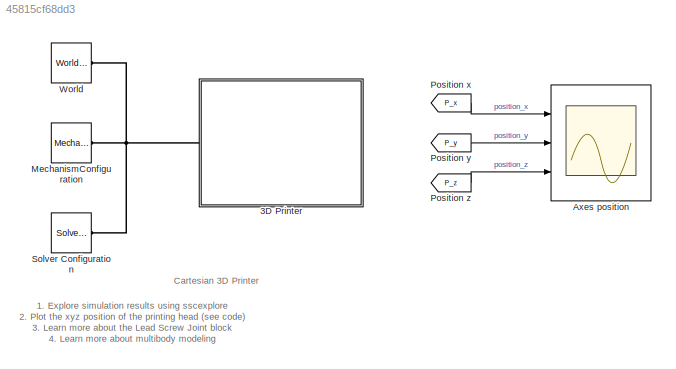
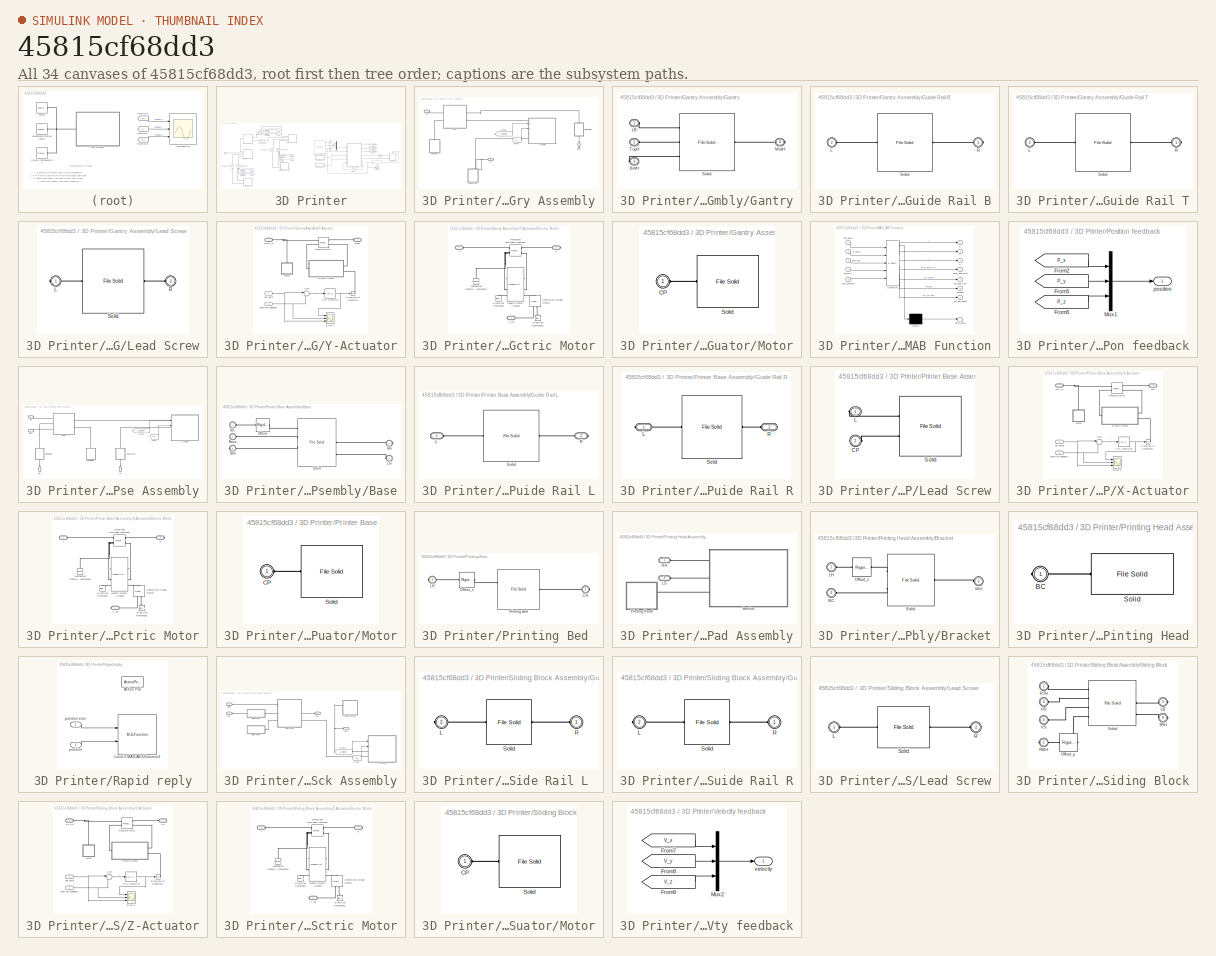
[diagram: thumbnail index - all 34 canvases of the model, root first then tree order]
MODEL slx_45815cf68dd3
KIND model
CONFIG AbsTol = auto
CONFIG EnableMultiTasking = off
CONFIG FixedStep = auto
CONFIG MaxStep = auto
CONFIG MinStep = auto
CONFIG RelTol = 1e-3
CONFIG SampleTimeConstraint = Unconstrained
CONFIG SolverName = ode45
CONFIG StartTime = 0.0
CONFIG StopTime = 1.89
WORKSPACE source: external: MATLAB File  (data not in archive)
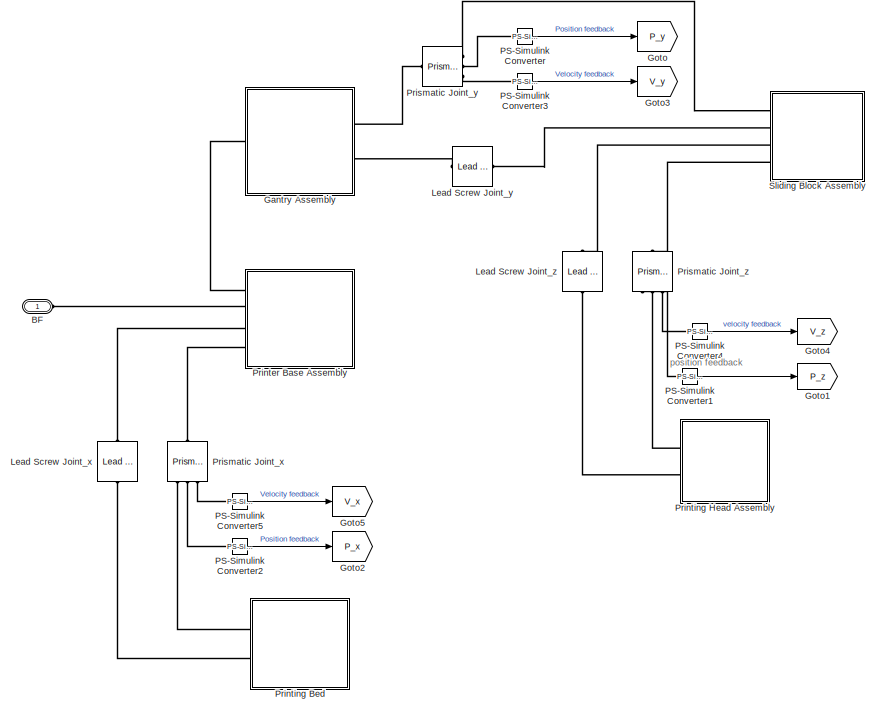
[diagram: 3D Printer - part 1/2, left side, full height]
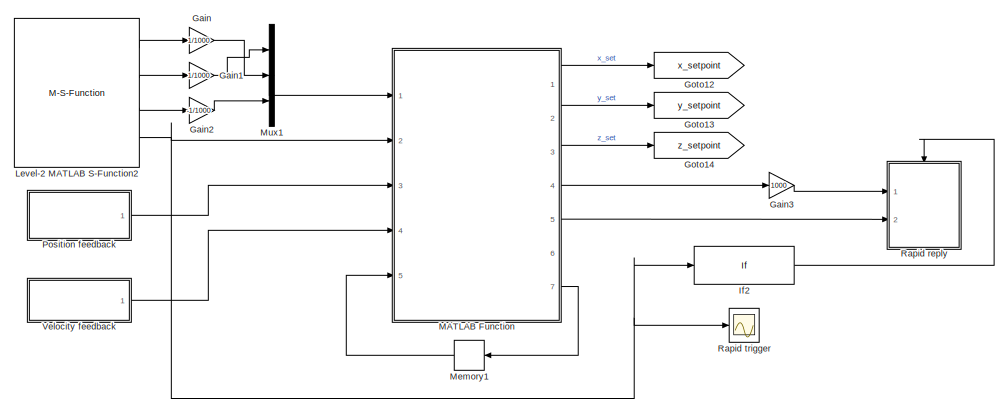
[diagram: 3D Printer - part 2/2, middle right region]
BLOCK [SubSystem] 3D Printer
  Ports = [0, 0, 0, 0, 0, 1]
  RequestExecContextInheritance = off
BLOCK [PMIOPort] 3D Printer/BF 
  Side = Left
BLOCK [Gain] 3D Printer/Gain
  Gain = 1/1000
BLOCK [Gain] 3D Printer/Gain1
  Gain = 1/1000
BLOCK [Gain] 3D Printer/Gain2
  Gain = -1/1000
BLOCK [Gain] 3D Printer/Gain3
  Gain = 1000
BLOCK [SubSystem] 3D Printer/Gantry Assembly
  Ports = [0, 0, 0, 0, 0, 1, 2]
  RequestExecContextInheritance = off
BLOCK [PMIOPort] 3D Printer/Gantry Assembly/BotH
  NameLocation = left
  Side = Right
BLOCK [From] 3D Printer/Gantry Assembly/From
  GotoTag = P_y
  TagVisibility = global
BLOCK [From] 3D Printer/Gantry Assembly/From1
  GotoTag = y_setpoint
  TagVisibility = global
BLOCK [SubSystem] 3D Printer/Gantry Assembly/Gantry
  Ports = [0, 0, 0, 0, 0, 2, 2]
  RequestExecContextInheritance = off
BLOCK [PMIOPort] 3D Printer/Gantry Assembly/Gantry/BotH
  Port = 3
  Side = Right
BLOCK [PMIOPort] 3D Printer/Gantry Assembly/Gantry/LB
  Side = Left
BLOCK [PMIOPort] 3D Printer/Gantry Assembly/Gantry/MidH
  Port = 4
  Side = Right
BLOCK [Reference] 3D Printer/Gantry Assembly/Gantry/Solid  REF=sm_lib/Body Elements/File Solid
  Ports = [0, 0, 0, 0, 0, 3, 3]
  SourceBlock = sm_lib/Body Elements/File Solid
  SourceProductBaseCode = MS
  SourceType = File Solid
BLOCK [PMIOPort] 3D Printer/Gantry Assembly/Gantry/TopH
  Port = 2
  Side = Left
BLOCK [SubSystem] 3D Printer/Gantry Assembly/Guide Rail B
  NameLocation = right
  Ports = [0, 0, 0, 0, 0, 1, 1]
  RequestExecContextInheritance = off
BLOCK [PMIOPort] 3D Printer/Gantry Assembly/Guide Rail B/L
  Port = 2
  Side = Left
BLOCK [PMIOPort] 3D Printer/Gantry Assembly/Guide Rail B/R
  Side = Right
BLOCK [Reference] 3D Printer/Gantry Assembly/Guide Rail B/Solid  REF=sm_lib/Body Elements/File Solid
  Ports = [0, 0, 0, 0, 0, 1, 1]
  SourceBlock = sm_lib/Body Elements/File Solid
  SourceProductBaseCode = MS
  SourceType = File Solid
BLOCK [SubSystem] 3D Printer/Gantry Assembly/Guide Rail T
  NameLocation = right
  Ports = [0, 0, 0, 0, 0, 1, 1]
  RequestExecContextInheritance = off
BLOCK [PMIOPort] 3D Printer/Gantry Assembly/Guide Rail T/L
  Port = 2
  Side = Left
BLOCK [PMIOPort] 3D Printer/Gantry Assembly/Guide Rail T/R
  Side = Right
BLOCK [Reference] 3D Printer/Gantry Assembly/Guide Rail T/Solid  REF=sm_lib/Body Elements/File Solid
  Ports = [0, 0, 0, 0, 0, 1, 1]
  SourceBlock = sm_lib/Body Elements/File Solid
  SourceProductBaseCode = MS
  SourceType = File Solid
BLOCK [PMIOPort] 3D Printer/Gantry Assembly/LB
  Port = 2
  Side = Left
BLOCK [PMIOPort] 3D Printer/Gantry Assembly/LS 
  Port = 3
  Side = Right
BLOCK [SubSystem] 3D Printer/Gantry Assembly/Lead Screw
  NameLocation = right
  Ports = [0, 0, 0, 0, 0, 1, 1]
  RequestExecContextInheritance = off
BLOCK [PMIOPort] 3D Printer/Gantry Assembly/Lead Screw/L
  Side = Right
BLOCK [PMIOPort] 3D Printer/Gantry Assembly/Lead Screw/R
  Port = 2
  Side = Left
BLOCK [Reference] 3D Printer/Gantry Assembly/Lead Screw/Solid  REF=sm_lib/Body Elements/File Solid
  Ports = [0, 0, 0, 0, 0, 1, 1]
  SourceBlock = sm_lib/Body Elements/File Solid
  SourceProductBaseCode = MS
  SourceType = File Solid
BLOCK [SubSystem] 3D Printer/Gantry Assembly/Y-Actuator
  PortSchema = {"entries":[{"content":{"sides":[{"content":{"connectorIds":["LConn1","LConn2","In1","In2"]},"type":"ConnectorPlacement.EquallySpacedRectSide","uuid":"22a72145-70fe-4c07-a355-17651bab5534"},{"content":{"connectorIds":[],"side":"RIGHT"},"type":"ConnectorPlacement.EquallySpacedRectSide","uuid":"e15c401c-ae36-45b1-bf72-5294abc9e452"},{"content":{"connectorIds":[],"side":"TOP"},"type":"ConnectorPlacem...<+258ch>  <repeated x3 — deduplicated; at blocks: Y-Actuator, X-Actuator, Z-Actuator>
  Ports = [2, 0, 0, 0, 0, 2]
  RequestExecContextInheritance = off
BLOCK [SubSystem] 3D Printer/Gantry Assembly/Y-Actuator/Electric Motor
  Ports = [0, 0, 0, 0, 0, 1, 2]
  RequestExecContextInheritance = off
BLOCK [Reference] 3D Printer/Gantry Assembly/Y-Actuator/Electric Motor/Controlled Voltage Source  REF=fl_lib/Electrical/Electrical Sources/Controlled Voltage
Source
  NameLocation = right
  Ports = [0, 0, 0, 0, 0, 1, 2]
  SourceBlock = fl_lib/Electrical/Electrical Sources/Controlled Voltage\nSource
  SourceProductBaseCode = PW,SS,VE
  SourceType = Controlled Voltage\nSource
BLOCK [Reference] 3D Printer/Gantry Assembly/Y-Actuator/Electric Motor/Electrical Reference  REF=fl_lib/Electrical/Electrical Elements/Electrical Reference
  NameLocation = right
  Ports = [0, 0, 0, 0, 0, 1]
  SourceBlock = fl_lib/Electrical/Electrical Elements/Electrical Reference
  SourceProductBaseCode = PW,SS,VE
  SourceType = Electrical Reference
BLOCK [Reference] 3D Printer/Gantry Assembly/Y-Actuator/Electric Motor/Electrical Reference1  REF=fl_lib/Electrical/Electrical Elements/Electrical Reference
  NameLocation = right
  Ports = [0, 0, 0, 0, 0, 1]
  SourceBlock = fl_lib/Electrical/Electrical Elements/Electrical Reference
  SourceProductBaseCode = PW,SS,VE
  SourceType = Electrical Reference
BLOCK [Reference] 3D Printer/Gantry Assembly/Y-Actuator/Electric Motor/Generic Rotary Actuator  REF=ee_lib/Electromechanical/Mechatronic
Actuators/Generic Rotary
Actuator
  NameLocation = top
  Ports = [0, 0, 0, 0, 0, 2, 2]
  SourceBlock = ee_lib/Electromechanical/Mechatronic\nActuators/Generic Rotary\nActuator
  SourceProductBaseCode = PS
  SourceType = Generic Rotary\nActuator
BLOCK [Reference] 3D Printer/Gantry Assembly/Y-Actuator/Electric Motor/Mechanical Rotational Reference  REF=fl_lib/Mechanical/Rotational Elements/Mechanical
Rotational Reference
  NameLocation = right
  Ports = [0, 0, 0, 0, 0, 1]
  SourceBlock = fl_lib/Mechanical/Rotational Elements/Mechanical\nRotational Reference
  SourceProductBaseCode = PW,SS,VE
  SourceType = Mechanical\nRotational Reference
BLOCK [Reference] 3D Printer/Gantry Assembly/Y-Actuator/Electric Motor/Rotational Multibody Interface  REF=fl_lib/Mechanical/Multibody Interfaces/Rotational Multibody
Interface
  Ports = [0, 0, 0, 0, 0, 2, 2]
  SourceBlock = fl_lib/Mechanical/Multibody Interfaces/Rotational Multibody\nInterface
  SourceProductBaseCode = PW,SS,VE
  SourceType = Rotational Multibody\nInterface
BLOCK [PMIOPort] 3D Printer/Gantry Assembly/Y-Actuator/Electric Motor/V_ref
  Port = 3
  Side = Right
BLOCK [PMIOPort] 3D Printer/Gantry Assembly/Y-Actuator/Electric Motor/t
  Side = Left
BLOCK [PMIOPort] 3D Printer/Gantry Assembly/Y-Actuator/Electric Motor/w
  Port = 2
  Side = Right
BLOCK [Scope] 3D Printer/Gantry Assembly/Y-Actuator/Error Y
  Floating = off
  NumInputPorts = 3
  Ports = [3]
  ScopeSpecificationString = Simulink.scopes.TimeScopeBlockCfg('CurrentConfiguration', extmgr.ConfigurationSet(extmgr.Configuration('Core','General UI',true),extmgr.Configuration('Core','Source UI',true),extmgr.Configuration('Sources','WiredSimulink',true,'DataLoggingVariableName','ScopeData4'),extmgr.Configuration('Visuals','Time Domain',true,'SerializedDisplays',{struct('MinYLimReal','-0.06798','MaxYLimReal','0.4742','YLabe...<+1453ch>
BLOCK [PMIOPort] 3D Printer/Gantry Assembly/Y-Actuator/MidH
  NameLocation = top
  Port = 2
  Side = Left
BLOCK [PMIOPort] 3D Printer/Gantry Assembly/Y-Actuator/MidH_IN
  Side = Left
BLOCK [SubSystem] 3D Printer/Gantry Assembly/Y-Actuator/Motor
  Ports = [0, 0, 0, 0, 0, 1]
  RequestExecContextInheritance = off
BLOCK [PMIOPort] 3D Printer/Gantry Assembly/Y-Actuator/Motor/CP
  Side = Left
BLOCK [Reference] 3D Printer/Gantry Assembly/Y-Actuator/Motor/Solid  REF=sm_lib/Body Elements/File Solid
  Ports = [0, 0, 0, 0, 0, 1]
  SourceBlock = sm_lib/Body Elements/File Solid
  SourceProductBaseCode = MS
  SourceType = File Solid
BLOCK [Reference] 3D Printer/Gantry Assembly/Y-Actuator/PID Controller  REF=slpidlib/PID Controller
  Ports = [1, 1]
  SourceBlock = slpidlib/PID Controller
  SourceProductBaseCode = SL
  SourceType = PID 1dof
BLOCK [Reference] 3D Printer/Gantry Assembly/Y-Actuator/Revolute Joint1  REF=sm_lib/Joints/Revolute Joint
  Ports = [0, 0, 0, 0, 0, 2, 2]
  SourceBlock = sm_lib/Joints/Revolute Joint
  SourceProductBaseCode = MS
  SourceType = Revolute Joint
BLOCK [Reference] 3D Printer/Gantry Assembly/Y-Actuator/Simulink-PS Converter1  REF=nesl_utility/Simulink-PS
Converter
  Ports = [1, 0, 0, 0, 0, 0, 1]
  SourceBlock = nesl_utility/Simulink-PS\nConverter
  SourceProductName = Utilities
  SourceType = Simulink-PS\nConverter
BLOCK [Sum] 3D Printer/Gantry Assembly/Y-Actuator/Sum
  Inputs = |-+
  Ports = [2, 1]
BLOCK [Inport] 3D Printer/Gantry Assembly/Y-Actuator/position feedback
  Port = 2
BLOCK [Inport] 3D Printer/Gantry Assembly/Y-Actuator/set point
BLOCK [Goto] 3D Printer/Goto
  GotoTag = P_y
  TagVisibility = global
BLOCK [Goto] 3D Printer/Goto1
  GotoTag = P_z
  TagVisibility = global
BLOCK [Goto] 3D Printer/Goto12
  GotoTag = x_setpoint
  TagVisibility = global
BLOCK [Goto] 3D Printer/Goto13
  GotoTag = y_setpoint
  TagVisibility = global
BLOCK [Goto] 3D Printer/Goto14
  GotoTag = z_setpoint
  TagVisibility = global
BLOCK [Goto] 3D Printer/Goto2
  GotoTag = P_x
  TagVisibility = global
BLOCK [Goto] 3D Printer/Goto3
  GotoTag = V_y
  TagVisibility = global
BLOCK [Goto] 3D Printer/Goto4
  GotoTag = V_z
  TagVisibility = global
BLOCK [Goto] 3D Printer/Goto5
  GotoTag = V_x
  TagVisibility = global
BLOCK [If] 3D Printer/If2
  IfExpression = u1
  Ports = [1, 1]
  ShowElse = off
BLOCK [Reference] 3D Printer/Lead Screw Joint_x  REF=sm_lib/Joints/Lead Screw
Joint
  NameLocation = left
  Ports = [0, 0, 0, 0, 0, 1, 1]
  SourceBlock = sm_lib/Joints/Lead Screw\nJoint
  SourceProductBaseCode = MS
  SourceType = Lead Screw\nJoint
BLOCK [Reference] 3D Printer/Lead Screw Joint_y  REF=sm_lib/Joints/Lead Screw
Joint
  Ports = [0, 0, 0, 0, 0, 1, 1]
  SourceBlock = sm_lib/Joints/Lead Screw\nJoint
  SourceProductBaseCode = MS
  SourceType = Lead Screw\nJoint
BLOCK [Reference] 3D Printer/Lead Screw Joint_z  REF=sm_lib/Joints/Lead Screw
Joint
  NameLocation = left
  Ports = [0, 0, 0, 0, 0, 1, 1]
  SourceBlock = sm_lib/Joints/Lead Screw\nJoint
  SourceProductBaseCode = MS
  SourceType = Lead Screw\nJoint
BLOCK [M-S-Function] 3D Printer/Level-2 MATLAB S-Function2
  FunctionName = mqtt_sub_position_new
  Ports = [0, 4]
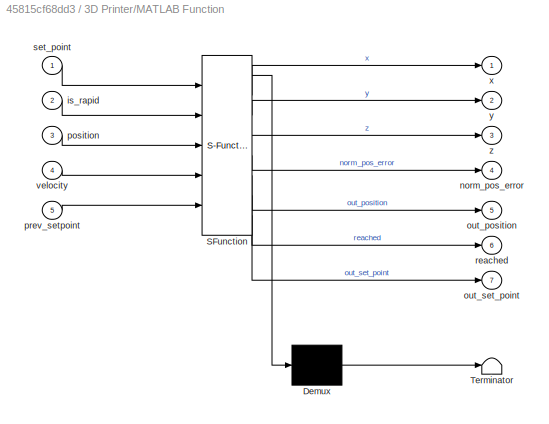
BLOCK [SubSystem] 3D Printer/MATLAB Function
  ErrorFcn = Stateflow.Translate.translate
  PermitHierarchicalResolution = ExplicitOnly
  Ports = [5, 7]
  RequestExecContextInheritance = off
  SFBlockType = MATLAB Function
  TreatAsAtomicUnit = on
BLOCK [Demux] 3D Printer/MATLAB Function/ Demux 
  Outputs = 1
  Ports = [1, 1]
BLOCK [S-Function] 3D Printer/MATLAB Function/ SFunction 
  EnableBusSupport = on
  FunctionName = sf_sfun
  PortCounts = [5 8]
  Ports = [5, 8]
  SFcnIsStateOwnerBlock = off
  SFunctionDeploymentMode = off
  Tag = Stateflow S-Function 3
BLOCK [Terminator] 3D Printer/MATLAB Function/ Terminator 
BLOCK [Inport] 3D Printer/MATLAB Function/is_rapid
  Port = 2
BLOCK [Outport] 3D Printer/MATLAB Function/norm_pos_error
  Port = 4
BLOCK [Outport] 3D Printer/MATLAB Function/out_position
  Port = 5
BLOCK [Outport] 3D Printer/MATLAB Function/out_set_point
  Port = 7
BLOCK [Inport] 3D Printer/MATLAB Function/position
  Port = 3
BLOCK [Inport] 3D Printer/MATLAB Function/prev_setpoint
  Port = 5
BLOCK [Outport] 3D Printer/MATLAB Function/reached
  Port = 6
BLOCK [Inport] 3D Printer/MATLAB Function/set_point
BLOCK [Inport] 3D Printer/MATLAB Function/velocity
  Port = 4
BLOCK [Outport] 3D Printer/MATLAB Function/x
BLOCK [Outport] 3D Printer/MATLAB Function/y
  Port = 2
BLOCK [Outport] 3D Printer/MATLAB Function/z
  Port = 3
BLOCK [Memory] 3D Printer/Memory1
  InheritSampleTime = on
  InitialCondition = [0;0;0]
  LinearizeAsDelay = on
  NameLocation = top
BLOCK [Mux] 3D Printer/Mux1
  DisplayOption = bar
  Inputs = 3
  Ports = [3, 1]
BLOCK [Reference] 3D Printer/PS-Simulink Converter  REF=nesl_utility/PS-Simulink
Converter
  Ports = [0, 1, 0, 0, 0, 1]
  SourceBlock = nesl_utility/PS-Simulink\nConverter
  SourceProductBaseCode = SS,PW,VE
  SourceType = PS-Simulink\nConverter
BLOCK [Reference] 3D Printer/PS-Simulink Converter1  REF=nesl_utility/PS-Simulink
Converter
  Ports = [0, 1, 0, 0, 0, 1]
  SourceBlock = nesl_utility/PS-Simulink\nConverter
  SourceProductBaseCode = SS,PW,VE
  SourceType = PS-Simulink\nConverter
BLOCK [Reference] 3D Printer/PS-Simulink Converter2  REF=nesl_utility/PS-Simulink
Converter
  Ports = [0, 1, 0, 0, 0, 1]
  SourceBlock = nesl_utility/PS-Simulink\nConverter
  SourceProductBaseCode = SS,PW,VE
  SourceType = PS-Simulink\nConverter
BLOCK [Reference] 3D Printer/PS-Simulink Converter3  REF=nesl_utility/PS-Simulink
Converter
  Ports = [0, 1, 0, 0, 0, 1]
  SourceBlock = nesl_utility/PS-Simulink\nConverter
  SourceProductBaseCode = SS,PW,VE
  SourceType = PS-Simulink\nConverter
BLOCK [Reference] 3D Printer/PS-Simulink Converter4  REF=nesl_utility/PS-Simulink
Converter
  Ports = [0, 1, 0, 0, 0, 1]
  SourceBlock = nesl_utility/PS-Simulink\nConverter
  SourceProductBaseCode = SS,PW,VE
  SourceType = PS-Simulink\nConverter
BLOCK [Reference] 3D Printer/PS-Simulink Converter5  REF=nesl_utility/PS-Simulink
Converter
  Ports = [0, 1, 0, 0, 0, 1]
  SourceBlock = nesl_utility/PS-Simulink\nConverter
  SourceProductBaseCode = SS,PW,VE
  SourceType = PS-Simulink\nConverter
BLOCK [SubSystem] 3D Printer/Position feedback
  Ports = [0, 1]
  RequestExecContextInheritance = off
BLOCK [From] 3D Printer/Position feedback/From2
  GotoTag = P_x
  TagVisibility = global
BLOCK [From] 3D Printer/Position feedback/From5
  GotoTag = P_y
  TagVisibility = global
BLOCK [From] 3D Printer/Position feedback/From6
  GotoTag = P_z
  TagVisibility = global
BLOCK [Mux] 3D Printer/Position feedback/Mux1
  DisplayOption = bar
  Inputs = 3
  Ports = [3, 1]
BLOCK [Outport] 3D Printer/Position feedback/position
BLOCK [SubSystem] 3D Printer/Printer Base Assembly
  Ports = [0, 0, 0, 0, 0, 4]
  RequestExecContextInheritance = off
BLOCK [PMIOPort] 3D Printer/Printer Base Assembly/BF 
  Port = 2
  Side = Left
BLOCK [SubSystem] 3D Printer/Printer Base Assembly/Base
  Ports = [0, 0, 0, 0, 0, 3, 2]
  RequestExecContextInheritance = off
BLOCK [PMIOPort] 3D Printer/Printer Base Assembly/Base/Base
  Port = 5
  Side = Left
BLOCK [PMIOPort] 3D Printer/Printer Base Assembly/Base/LH
  Port = 2
  Side = Left
BLOCK [PMIOPort] 3D Printer/Printer Base Assembly/Base/MH 
  Port = 3
  Side = Right
BLOCK [PMIOPort] 3D Printer/Printer Base Assembly/Base/ML
  Side = Left
BLOCK [Reference] 3D Printer/Printer Base Assembly/Base/Offset  REF=sm_lib/Frames and
Transforms/Rigid
Transform
  Ports = [0, 0, 0, 0, 0, 1, 1]
  SourceBlock = sm_lib/Frames and\nTransforms/Rigid\nTransform
  SourceProductBaseCode = MS
  SourceType = Rigid\nTransform
BLOCK [PMIOPort] 3D Printer/Printer Base Assembly/Base/RH
  Port = 4
  Side = Right
BLOCK [Reference] 3D Printer/Printer Base Assembly/Base/Solid  REF=sm_lib/Body Elements/File Solid
  Ports = [0, 0, 0, 0, 0, 4, 3]
  SourceBlock = sm_lib/Body Elements/File Solid
  SourceProductBaseCode = MS
  SourceType = File Solid
BLOCK [From] 3D Printer/Printer Base Assembly/From
  GotoTag = P_x
  TagVisibility = global
BLOCK [From] 3D Printer/Printer Base Assembly/From1
  GotoTag = x_setpoint
  TagVisibility = global
BLOCK [PMIOPort] 3D Printer/Printer Base Assembly/GR
  NameLocation = right
  Port = 4
  Side = Left
BLOCK [SubSystem] 3D Printer/Printer Base Assembly/Guide Rail L
  NameLocation = right
  Ports = [0, 0, 0, 0, 0, 1, 1]
  RequestExecContextInheritance = off
BLOCK [PMIOPort] 3D Printer/Printer Base Assembly/Guide Rail L/L
  Side = Left
BLOCK [PMIOPort] 3D Printer/Printer Base Assembly/Guide Rail L/R
  Port = 2
  Side = Right
BLOCK [Reference] 3D Printer/Printer Base Assembly/Guide Rail L/Solid  REF=sm_lib/Body Elements/File Solid
  Ports = [0, 0, 0, 0, 0, 1, 1]
  SourceBlock = sm_lib/Body Elements/File Solid
  SourceProductBaseCode = MS
  SourceType = File Solid
BLOCK [SubSystem] 3D Printer/Printer Base Assembly/Guide Rail R
  NameLocation = right
  Ports = [0, 0, 0, 0, 0, 1, 1]
  RequestExecContextInheritance = off
BLOCK [PMIOPort] 3D Printer/Printer Base Assembly/Guide Rail R/L
  Side = Right
BLOCK [PMIOPort] 3D Printer/Printer Base Assembly/Guide Rail R/R
  Port = 2
  Side = Left
BLOCK [Reference] 3D Printer/Printer Base Assembly/Guide Rail R/Solid  REF=sm_lib/Body Elements/File Solid
  Ports = [0, 0, 0, 0, 0, 1, 1]
  SourceBlock = sm_lib/Body Elements/File Solid
  SourceProductBaseCode = MS
  SourceType = File Solid
BLOCK [PMIOPort] 3D Printer/Printer Base Assembly/LS
  NameLocation = right
  Port = 3
  Side = Left
BLOCK [SubSystem] 3D Printer/Printer Base Assembly/Lead Screw
  NameLocation = right
  Ports = [0, 0, 0, 0, 0, 1, 1]
  RequestExecContextInheritance = off
BLOCK [PMIOPort] 3D Printer/Printer Base Assembly/Lead Screw/CP 
  Port = 2
  Side = Left
BLOCK [PMIOPort] 3D Printer/Printer Base Assembly/Lead Screw/L 
  Side = Right
BLOCK [Reference] 3D Printer/Printer Base Assembly/Lead Screw/Solid  REF=sm_lib/Body Elements/File Solid
  Ports = [0, 0, 0, 0, 0, 2, 1]
  SourceBlock = sm_lib/Body Elements/File Solid
  SourceProductBaseCode = MS
  SourceType = File Solid
BLOCK [PMIOPort] 3D Printer/Printer Base Assembly/ML
  Side = Left
BLOCK [SubSystem] 3D Printer/Printer Base Assembly/X-Actuator
  Ports = [2, 0, 0, 0, 0, 2]
  RequestExecContextInheritance = off
BLOCK [SubSystem] 3D Printer/Printer Base Assembly/X-Actuator/Electric Motor
  Ports = [0, 0, 0, 0, 0, 1, 2]
  RequestExecContextInheritance = off
BLOCK [Reference] 3D Printer/Printer Base Assembly/X-Actuator/Electric Motor/Controlled Voltage Source  REF=fl_lib/Electrical/Electrical Sources/Controlled Voltage
Source
  NameLocation = right
  Ports = [0, 0, 0, 0, 0, 1, 2]
  SourceBlock = fl_lib/Electrical/Electrical Sources/Controlled Voltage\nSource
  SourceProductBaseCode = PW,SS,VE
  SourceType = Controlled Voltage\nSource
BLOCK [Reference] 3D Printer/Printer Base Assembly/X-Actuator/Electric Motor/Electrical Reference  REF=fl_lib/Electrical/Electrical Elements/Electrical Reference
  NameLocation = right
  Ports = [0, 0, 0, 0, 0, 1]
  SourceBlock = fl_lib/Electrical/Electrical Elements/Electrical Reference
  SourceProductBaseCode = PW,SS,VE
  SourceType = Electrical Reference
BLOCK [Reference] 3D Printer/Printer Base Assembly/X-Actuator/Electric Motor/Electrical Reference1  REF=fl_lib/Electrical/Electrical Elements/Electrical Reference
  NameLocation = right
  Ports = [0, 0, 0, 0, 0, 1]
  SourceBlock = fl_lib/Electrical/Electrical Elements/Electrical Reference
  SourceProductBaseCode = PW,SS,VE
  SourceType = Electrical Reference
BLOCK [Reference] 3D Printer/Printer Base Assembly/X-Actuator/Electric Motor/Generic Rotary Actuator  REF=ee_lib/Electromechanical/Mechatronic
Actuators/Generic Rotary
Actuator
  NameLocation = top
  Ports = [0, 0, 0, 0, 0, 2, 2]
  SourceBlock = ee_lib/Electromechanical/Mechatronic\nActuators/Generic Rotary\nActuator
  SourceProductBaseCode = PS
  SourceType = Generic Rotary\nActuator
BLOCK [Reference] 3D Printer/Printer Base Assembly/X-Actuator/Electric Motor/Mechanical Rotational Reference  REF=fl_lib/Mechanical/Rotational Elements/Mechanical
Rotational Reference
  NameLocation = right
  Ports = [0, 0, 0, 0, 0, 1]
  SourceBlock = fl_lib/Mechanical/Rotational Elements/Mechanical\nRotational Reference
  SourceProductBaseCode = PW,SS,VE
  SourceType = Mechanical\nRotational Reference
BLOCK [Reference] 3D Printer/Printer Base Assembly/X-Actuator/Electric Motor/Rotational Multibody Interface  REF=fl_lib/Mechanical/Multibody Interfaces/Rotational Multibody
Interface
  Ports = [0, 0, 0, 0, 0, 2, 2]
  SourceBlock = fl_lib/Mechanical/Multibody Interfaces/Rotational Multibody\nInterface
  SourceProductBaseCode = PW,SS,VE
  SourceType = Rotational Multibody\nInterface
BLOCK [PMIOPort] 3D Printer/Printer Base Assembly/X-Actuator/Electric Motor/V_ref
  Port = 3
  Side = Right
BLOCK [PMIOPort] 3D Printer/Printer Base Assembly/X-Actuator/Electric Motor/t
  Side = Left
BLOCK [PMIOPort] 3D Printer/Printer Base Assembly/X-Actuator/Electric Motor/w
  Port = 2
  Side = Right
BLOCK [Scope] 3D Printer/Printer Base Assembly/X-Actuator/Error X
  Floating = off
  NumInputPorts = 3
  Ports = [3]
  ScopeSpecificationString = Simulink.scopes.TimeScopeBlockCfg('CurrentConfiguration', extmgr.ConfigurationSet(extmgr.Configuration('Core','General UI',true),extmgr.Configuration('Core','Source UI',true),extmgr.Configuration('Sources','WiredSimulink',true,'DataLoggingVariableName','ScopeData3'),extmgr.Configuration('Visuals','Time Domain',true,'SerializedDisplays',{struct('MinYLimReal','-0.40928','MaxYLimReal','0.05867','YLab...<+1457ch>
BLOCK [PMIOPort] 3D Printer/Printer Base Assembly/X-Actuator/MH
  NameLocation = top
  Port = 2
  Side = Left
BLOCK [PMIOPort] 3D Printer/Printer Base Assembly/X-Actuator/MH_IN
  Side = Left
BLOCK [SubSystem] 3D Printer/Printer Base Assembly/X-Actuator/Motor
  Ports = [0, 0, 0, 0, 0, 1]
  RequestExecContextInheritance = off
BLOCK [PMIOPort] 3D Printer/Printer Base Assembly/X-Actuator/Motor/CP
  Side = Left
BLOCK [Reference] 3D Printer/Printer Base Assembly/X-Actuator/Motor/Solid  REF=sm_lib/Body Elements/File Solid
  Ports = [0, 0, 0, 0, 0, 1]
  SourceBlock = sm_lib/Body Elements/File Solid
  SourceProductBaseCode = MS
  SourceType = File Solid
BLOCK [Reference] 3D Printer/Printer Base Assembly/X-Actuator/PID Controller  REF=slpidlib/PID Controller
  Ports = [1, 1]
  SourceBlock = slpidlib/PID Controller
  SourceProductBaseCode = SL
  SourceType = PID 1dof
BLOCK [Reference] 3D Printer/Printer Base Assembly/X-Actuator/Revolute Joint1  REF=sm_lib/Joints/Revolute Joint
  Ports = [0, 0, 0, 0, 0, 2, 2]
  SourceBlock = sm_lib/Joints/Revolute Joint
  SourceProductBaseCode = MS
  SourceType = Revolute Joint
BLOCK [Reference] 3D Printer/Printer Base Assembly/X-Actuator/Simulink-PS Converter1  REF=nesl_utility/Simulink-PS
Converter
  Ports = [1, 0, 0, 0, 0, 0, 1]
  SourceBlock = nesl_utility/Simulink-PS\nConverter
  SourceProductName = Utilities
  SourceType = Simulink-PS\nConverter
BLOCK [Sum] 3D Printer/Printer Base Assembly/X-Actuator/Sum
  Inputs = |-+
  Ports = [2, 1]
BLOCK [Inport] 3D Printer/Printer Base Assembly/X-Actuator/position feedback
  Port = 2
BLOCK [Inport] 3D Printer/Printer Base Assembly/X-Actuator/set point
BLOCK [SubSystem] 3D Printer/Printing Bed 
  Ports = [0, 0, 0, 0, 0, 0, 2]
  RequestExecContextInheritance = off
BLOCK [PMIOPort] 3D Printer/Printing Bed /CH 
  Port = 2
  Side = Right
BLOCK [PMIOPort] 3D Printer/Printing Bed /LH
  Side = Right
BLOCK [Reference] 3D Printer/Printing Bed /Offset_x  REF=sm_lib/Frames and
Transforms/Rigid
Transform
  Ports = [0, 0, 0, 0, 0, 1, 1]
  SourceBlock = sm_lib/Frames and\nTransforms/Rigid\nTransform
  SourceProductBaseCode = MS
  SourceType = Rigid\nTransform
BLOCK [Reference] 3D Printer/Printing Bed /Printing Bed  REF=sm_lib/Body Elements/File Solid
  Ports = [0, 0, 0, 0, 0, 2, 1]
  SourceBlock = sm_lib/Body Elements/File Solid
  SourceProductBaseCode = MS
  SourceType = File Solid
BLOCK [SubSystem] 3D Printer/Printing Head Assembly
  Ports = [0, 0, 0, 0, 0, 2]
  RequestExecContextInheritance = off
BLOCK [SubSystem] 3D Printer/Printing Head Assembly/Bracket
  Ports = [0, 0, 0, 0, 0, 3]
  RequestExecContextInheritance = off
BLOCK [PMIOPort] 3D Printer/Printing Head Assembly/Bracket/BC 
  Port = 3
  Side = Left
BLOCK [PMIOPort] 3D Printer/Printing Head Assembly/Bracket/LH
  Side = Left
BLOCK [PMIOPort] 3D Printer/Printing Head Assembly/Bracket/MH
  Port = 2
  Side = Left
BLOCK [Reference] 3D Printer/Printing Head Assembly/Bracket/Offset_z  REF=sm_lib/Frames and
Transforms/Rigid
Transform
  Ports = [0, 0, 0, 0, 0, 1, 1]
  SourceBlock = sm_lib/Frames and\nTransforms/Rigid\nTransform
  SourceProductBaseCode = MS
  SourceType = Rigid\nTransform
BLOCK [Reference] 3D Printer/Printing Head Assembly/Bracket/Solid  REF=sm_lib/Body Elements/File Solid
  Ports = [0, 0, 0, 0, 0, 2, 1]
  SourceBlock = sm_lib/Body Elements/File Solid
  SourceProductBaseCode = MS
  SourceType = File Solid
BLOCK [PMIOPort] 3D Printer/Printing Head Assembly/LS 
  Port = 2
  Side = Left
BLOCK [SubSystem] 3D Printer/Printing Head Assembly/Printing Head
  Ports = [0, 0, 0, 0, 0, 0, 1]
  RequestExecContextInheritance = off
BLOCK [PMIOPort] 3D Printer/Printing Head Assembly/Printing Head/BC
  Side = Right
BLOCK [Reference] 3D Printer/Printing Head Assembly/Printing Head/Solid  REF=sm_lib/Body Elements/File Solid
  Ports = [0, 0, 0, 0, 0, 1, 1]
  SourceBlock = sm_lib/Body Elements/File Solid
  SourceProductBaseCode = MS
  SourceType = File Solid
BLOCK [PMIOPort] 3D Printer/Printing Head Assembly/RH
  Side = Left
BLOCK [Reference] 3D Printer/Prismatic Joint_x  REF=sm_lib/Joints/Prismatic
Joint
  NameLocation = right
  Ports = [0, 0, 0, 0, 0, 1, 3]
  SourceBlock = sm_lib/Joints/Prismatic\nJoint
  SourceProductBaseCode = MS
  SourceType = Prismatic\nJoint
BLOCK [Reference] 3D Printer/Prismatic Joint_y  REF=sm_lib/Joints/Prismatic
Joint
  NameLocation = top
  Ports = [0, 0, 0, 0, 0, 1, 3]
  SourceBlock = sm_lib/Joints/Prismatic\nJoint
  SourceProductBaseCode = MS
  SourceType = Prismatic\nJoint
BLOCK [Reference] 3D Printer/Prismatic Joint_z  REF=sm_lib/Joints/Prismatic
Joint
  NameLocation = right
  Ports = [0, 0, 0, 0, 0, 1, 3]
  SourceBlock = sm_lib/Joints/Prismatic\nJoint
  SourceProductBaseCode = MS
  SourceType = Prismatic\nJoint
BLOCK [SubSystem] 3D Printer/Rapid reply
  Ports = [2, 0, 0, 0, 0, 0, 0, 1]
  RequestExecContextInheritance = off
  TreatAsAtomicUnit = on
BLOCK [ActionPort] 3D Printer/Rapid reply/Action Port
  ActionPortLabel = if(u1)
BLOCK [M-S-Function] 3D Printer/Rapid reply/Level-2 MATLAB S-Function3
  FunctionName = mqtt_pub_rapid_new
  Parameters = M
  Ports = [2]
BLOCK [Inport] 3D Printer/Rapid reply/position
  Port = 2
BLOCK [Inport] 3D Printer/Rapid reply/position error
BLOCK [Scope] 3D Printer/Rapid trigger
  Floating = off
  NumInputPorts = 1
  Ports = [1]
  ScopeSpecificationString = Simulink.scopes.TimeScopeBlockCfg('CurrentConfiguration', extmgr.ConfigurationSet(extmgr.Configuration('Core','General UI',true),extmgr.Configuration('Core','Source UI',true),extmgr.Configuration('Sources','WiredSimulink',true,'DataLoggingVariableName','ScopeData1'),extmgr.Configuration('Visuals','Time Domain',true,'SerializedDisplays',{struct('MinYLimReal','-0.125','MaxYLimReal','1.125','YLabelRe...<+1423ch>
BLOCK [SubSystem] 3D Printer/Sliding Block Assembly
  Ports = [0, 0, 0, 0, 0, 4]
  RequestExecContextInheritance = off
BLOCK [From] 3D Printer/Sliding Block Assembly/From
  GotoTag = P_z
  TagVisibility = global
BLOCK [From] 3D Printer/Sliding Block Assembly/From1
  GotoTag = z_setpoint
  TagVisibility = global
BLOCK [SubSystem] 3D Printer/Sliding Block Assembly/Guide Rail L 
  Ports = [0, 0, 0, 0, 0, 1, 1]
  RequestExecContextInheritance = off
BLOCK [PMIOPort] 3D Printer/Sliding Block Assembly/Guide Rail L /L
  Port = 2
  Side = Right
BLOCK [PMIOPort] 3D Printer/Sliding Block Assembly/Guide Rail L /R
  Side = Left
BLOCK [Reference] 3D Printer/Sliding Block Assembly/Guide Rail L /Solid  REF=sm_lib/Body Elements/File Solid
  Ports = [0, 0, 0, 0, 0, 1, 1]
  SourceBlock = sm_lib/Body Elements/File Solid
  SourceProductBaseCode = MS
  SourceType = File Solid
BLOCK [SubSystem] 3D Printer/Sliding Block Assembly/Guide Rail R
  Ports = [0, 0, 0, 0, 0, 1, 1]
  RequestExecContextInheritance = off
BLOCK [PMIOPort] 3D Printer/Sliding Block Assembly/Guide Rail R/L
  Port = 2
  Side = Right
BLOCK [PMIOPort] 3D Printer/Sliding Block Assembly/Guide Rail R/R
  Side = Left
BLOCK [Reference] 3D Printer/Sliding Block Assembly/Guide Rail R/Solid  REF=sm_lib/Body Elements/File Solid
  Ports = [0, 0, 0, 0, 0, 1, 1]
  SourceBlock = sm_lib/Body Elements/File Solid
  SourceProductBaseCode = MS
  SourceType = File Solid
BLOCK [PMIOPort] 3D Printer/Sliding Block Assembly/HS
  NameLocation = top
  Port = 2
  Side = Left
BLOCK [SubSystem] 3D Printer/Sliding Block Assembly/Lead Screw
  Ports = [0, 0, 0, 0, 0, 2]
  RequestExecContextInheritance = off
BLOCK [PMIOPort] 3D Printer/Sliding Block Assembly/Lead Screw/L
  Side = Left
BLOCK [PMIOPort] 3D Printer/Sliding Block Assembly/Lead Screw/R
  Port = 2
  Side = Left
BLOCK [Reference] 3D Printer/Sliding Block Assembly/Lead Screw/Solid  REF=sm_lib/Body Elements/File Solid
  Ports = [0, 0, 0, 0, 0, 1, 1]
  SourceBlock = sm_lib/Body Elements/File Solid
  SourceProductBaseCode = MS
  SourceType = File Solid
BLOCK [PMIOPort] 3D Printer/Sliding Block Assembly/RB
  Port = 4
  Side = Left
BLOCK [PMIOPort] 3D Printer/Sliding Block Assembly/RBH
  Side = Left
BLOCK [SubSystem] 3D Printer/Sliding Block Assembly/Sliding Block
  Ports = [0, 0, 0, 0, 0, 3, 3]
  RequestExecContextInheritance = off
BLOCK [PMIOPort] 3D Printer/Sliding Block Assembly/Sliding Block/HS
  Port = 3
  Side = Left
BLOCK [PMIOPort] 3D Printer/Sliding Block Assembly/Sliding Block/LB
  Port = 5
  Side = Right
BLOCK [Reference] 3D Printer/Sliding Block Assembly/Sliding Block/Offset_y  REF=sm_lib/Frames and
Transforms/Rigid
Transform
  Ports = [0, 0, 0, 0, 0, 1, 1]
  SourceBlock = sm_lib/Frames and\nTransforms/Rigid\nTransform
  SourceProductBaseCode = MS
  SourceType = Rigid\nTransform
BLOCK [PMIOPort] 3D Printer/Sliding Block Assembly/Sliding Block/RBH
  Side = Right
BLOCK [PMIOPort] 3D Printer/Sliding Block Assembly/Sliding Block/RTH
  Port = 2
  Side = Left
BLOCK [Reference] 3D Printer/Sliding Block Assembly/Sliding Block/Solid  REF=sm_lib/Body Elements/File Solid
  Ports = [0, 0, 0, 0, 0, 4, 3]
  SourceBlock = sm_lib/Body Elements/File Solid
  SourceProductBaseCode = MS
  SourceType = File Solid
BLOCK [PMIOPort] 3D Printer/Sliding Block Assembly/Sliding Block/TRH
  Port = 6
  Side = Right
BLOCK [PMIOPort] 3D Printer/Sliding Block Assembly/Sliding Block/VS
  Port = 4
  Side = Left
BLOCK [PMIOPort] 3D Printer/Sliding Block Assembly/VS
  NameLocation = top
  Port = 3
  Side = Left
BLOCK [SubSystem] 3D Printer/Sliding Block Assembly/Z-Actuator
  Ports = [2, 0, 0, 0, 0, 2]
  RequestExecContextInheritance = off
BLOCK [SubSystem] 3D Printer/Sliding Block Assembly/Z-Actuator/Electric Motor
  Ports = [0, 0, 0, 0, 0, 1, 2]
  RequestExecContextInheritance = off
BLOCK [Reference] 3D Printer/Sliding Block Assembly/Z-Actuator/Electric Motor/Controlled Voltage Source  REF=fl_lib/Electrical/Electrical Sources/Controlled Voltage
Source
  NameLocation = right
  Ports = [0, 0, 0, 0, 0, 1, 2]
  SourceBlock = fl_lib/Electrical/Electrical Sources/Controlled Voltage\nSource
  SourceProductBaseCode = PW,SS,VE
  SourceType = Controlled Voltage\nSource
BLOCK [Reference] 3D Printer/Sliding Block Assembly/Z-Actuator/Electric Motor/Electrical Reference  REF=fl_lib/Electrical/Electrical Elements/Electrical Reference
  NameLocation = right
  Ports = [0, 0, 0, 0, 0, 1]
  SourceBlock = fl_lib/Electrical/Electrical Elements/Electrical Reference
  SourceProductBaseCode = PW,SS,VE
  SourceType = Electrical Reference
BLOCK [Reference] 3D Printer/Sliding Block Assembly/Z-Actuator/Electric Motor/Electrical Reference1  REF=fl_lib/Electrical/Electrical Elements/Electrical Reference
  NameLocation = right
  Ports = [0, 0, 0, 0, 0, 1]
  SourceBlock = fl_lib/Electrical/Electrical Elements/Electrical Reference
  SourceProductBaseCode = PW,SS,VE
  SourceType = Electrical Reference
BLOCK [Reference] 3D Printer/Sliding Block Assembly/Z-Actuator/Electric Motor/Generic Rotary Actuator  REF=ee_lib/Electromechanical/Mechatronic
Actuators/Generic Rotary
Actuator
  NameLocation = top
  Ports = [0, 0, 0, 0, 0, 2, 2]
  SourceBlock = ee_lib/Electromechanical/Mechatronic\nActuators/Generic Rotary\nActuator
  SourceProductBaseCode = PS
  SourceType = Generic Rotary\nActuator
BLOCK [Reference] 3D Printer/Sliding Block Assembly/Z-Actuator/Electric Motor/Mechanical Rotational Reference  REF=fl_lib/Mechanical/Rotational Elements/Mechanical
Rotational Reference
  NameLocation = right
  Ports = [0, 0, 0, 0, 0, 1]
  SourceBlock = fl_lib/Mechanical/Rotational Elements/Mechanical\nRotational Reference
  SourceProductBaseCode = PW,SS,VE
  SourceType = Mechanical\nRotational Reference
BLOCK [Reference] 3D Printer/Sliding Block Assembly/Z-Actuator/Electric Motor/Rotational Multibody Interface  REF=fl_lib/Mechanical/Multibody Interfaces/Rotational Multibody
Interface
  Ports = [0, 0, 0, 0, 0, 2, 2]
  SourceBlock = fl_lib/Mechanical/Multibody Interfaces/Rotational Multibody\nInterface
  SourceProductBaseCode = PW,SS,VE
  SourceType = Rotational Multibody\nInterface
BLOCK [PMIOPort] 3D Printer/Sliding Block Assembly/Z-Actuator/Electric Motor/V_ref
  Port = 3
  Side = Right
BLOCK [PMIOPort] 3D Printer/Sliding Block Assembly/Z-Actuator/Electric Motor/t
  Side = Left
BLOCK [PMIOPort] 3D Printer/Sliding Block Assembly/Z-Actuator/Electric Motor/w
  Port = 2
  Side = Right
BLOCK [Scope] 3D Printer/Sliding Block Assembly/Z-Actuator/Error Z
  Floating = off
  NumInputPorts = 3
  Ports = [3]
  ScopeSpecificationString = Simulink.scopes.TimeScopeBlockCfg('CurrentConfiguration', extmgr.ConfigurationSet(extmgr.Configuration('Core','General UI',true),extmgr.Configuration('Core','Source UI',true),extmgr.Configuration('Sources','WiredSimulink',true,'DataLoggingVariableName','ScopeData2'),extmgr.Configuration('Visuals','Time Domain',true,'SerializedDisplays',{struct('MinYLimReal','-15.00000','MaxYLimReal','15.00000','YL...<+1551ch>
BLOCK [SubSystem] 3D Printer/Sliding Block Assembly/Z-Actuator/Motor
  Ports = [0, 0, 0, 0, 0, 1]
  RequestExecContextInheritance = off
BLOCK [PMIOPort] 3D Printer/Sliding Block Assembly/Z-Actuator/Motor/CP
  Side = Left
BLOCK [Reference] 3D Printer/Sliding Block Assembly/Z-Actuator/Motor/Solid  REF=sm_lib/Body Elements/File Solid
  Ports = [0, 0, 0, 0, 0, 1]
  SourceBlock = sm_lib/Body Elements/File Solid
  SourceProductBaseCode = MS
  SourceType = File Solid
BLOCK [Reference] 3D Printer/Sliding Block Assembly/Z-Actuator/PID Controller  REF=slpidlib/PID Controller
  Ports = [1, 1]
  SourceBlock = slpidlib/PID Controller
  SourceProductBaseCode = SL
  SourceType = PID 1dof
BLOCK [Reference] 3D Printer/Sliding Block Assembly/Z-Actuator/Revolute Joint1  REF=sm_lib/Joints/Revolute Joint
  Ports = [0, 0, 0, 0, 0, 2, 2]
  SourceBlock = sm_lib/Joints/Revolute Joint
  SourceProductBaseCode = MS
  SourceType = Revolute Joint
BLOCK [Reference] 3D Printer/Sliding Block Assembly/Z-Actuator/Simulink-PS Converter1  REF=nesl_utility/Simulink-PS
Converter
  Ports = [1, 0, 0, 0, 0, 0, 1]
  SourceBlock = nesl_utility/Simulink-PS\nConverter
  SourceProductName = Utilities
  SourceType = Simulink-PS\nConverter
BLOCK [Sum] 3D Printer/Sliding Block Assembly/Z-Actuator/Sum
  Inputs = |-+
  Ports = [2, 1]
BLOCK [PMIOPort] 3D Printer/Sliding Block Assembly/Z-Actuator/VS
  NameLocation = top
  Side = Left
BLOCK [PMIOPort] 3D Printer/Sliding Block Assembly/Z-Actuator/VS_IN
  Port = 2
  Side = Left
BLOCK [Inport] 3D Printer/Sliding Block Assembly/Z-Actuator/position feedback
  Port = 2
BLOCK [Inport] 3D Printer/Sliding Block Assembly/Z-Actuator/set point
BLOCK [SubSystem] 3D Printer/Velocity feedback
  Ports = [0, 1]
  RequestExecContextInheritance = off
BLOCK [From] 3D Printer/Velocity feedback/From7
  GotoTag = V_x
  TagVisibility = global
BLOCK [From] 3D Printer/Velocity feedback/From8
  GotoTag = V_y
  TagVisibility = global
BLOCK [From] 3D Printer/Velocity feedback/From9
  GotoTag = V_z
  TagVisibility = global
BLOCK [Mux] 3D Printer/Velocity feedback/Mux2
  DisplayOption = bar
  Inputs = 3
  Ports = [3, 1]
BLOCK [Outport] 3D Printer/Velocity feedback/velocity
BLOCK [Scope] Axes position
  Floating = off
  NumInputPorts = 3
  Ports = [3]
  ScopeSpecificationString = Simulink.scopes.TimeScopeBlockCfg('CurrentConfiguration', extmgr.ConfigurationSet(extmgr.Configuration('Core','General UI',true),extmgr.Configuration('Core','Source UI',true),extmgr.Configuration('Sources','WiredSimulink',true,'DataLoggingMaxPoints','6000'),extmgr.Configuration('Visuals','Time Domain',true,'SerializedDisplays',{struct('MinYLimReal','-0.00194','MaxYLimReal','0.00022','YLabelReal','...<+2772ch>
BLOCK [Reference] MechanismConfiguration  REF=sm_lib/Utilities/Mechanism
Configuration
  Ports = [0, 0, 0, 0, 0, 0, 1]
  SourceBlock = sm_lib/Utilities/Mechanism\nConfiguration
  SourceProductBaseCode = MS
  SourceType = Mechanism\nConfiguration
BLOCK [From] Position x
  GotoTag = P_x
  TagVisibility = global
BLOCK [From] Position y
  GotoTag = P_y
  TagVisibility = global
BLOCK [From] Position z
  GotoTag = P_z
  TagVisibility = global
BLOCK [Reference] Solver Configuration  REF=nesl_utility/Solver
Configuration
  Ports = [0, 0, 0, 0, 0, 0, 1]
  SourceBlock = nesl_utility/Solver\nConfiguration
  SourceProductBaseCode = SS,PW,VE
  SourceType = Solver\nConfiguration
BLOCK [Reference] World  REF=sm_lib/Frames and
Transforms/World Frame
  Ports = [0, 0, 0, 0, 0, 0, 1]
  SourceBlock = sm_lib/Frames and\nTransforms/World Frame
  SourceProductBaseCode = MS
  SourceType = World Frame
ANNOTATION (root): Cartesian 3D Printer
ANNOTATION (root): 1. Explore simulation results using sscexplore 2. Plot the xyz position of the printing head ( see code ) 3. Learn more about the Lead Screw Joint block 4. Learn more about multibody modeling
ANNOTATION 3D Printer: position feedback
LINE 3D Printer/Gain1:1 -> 3D Printer/Mux1:1
LINE 3D Printer/Gain2:1 -> 3D Printer/Mux1:3
LINE 3D Printer/Gain3:1 -> 3D Printer/Rapid reply:1
LINE 3D Printer/Gain:1 -> 3D Printer/Mux1:2
LINE 3D Printer/Gantry Assembly/From1:1 -> 3D Printer/Gantry Assembly/Y-Actuator:1
LINE 3D Printer/Gantry Assembly/From:1 -> 3D Printer/Gantry Assembly/Y-Actuator:2
NET 3D Printer/Gantry Assembly/Y-Actuator/PID Controller:1 -> 3D Printer/Gantry Assembly/Y-Actuator/Error Y:1, 3D Printer/Gantry Assembly/Y-Actuator/Simulink-PS Converter1:1
LINE 3D Printer/Gantry Assembly/Y-Actuator/Sum:1 -> 3D Printer/Gantry Assembly/Y-Actuator/PID Controller:1
NET 3D Printer/Gantry Assembly/Y-Actuator/position feedback:1 -> 3D Printer/Gantry Assembly/Y-Actuator/Error Y:2, 3D Printer/Gantry Assembly/Y-Actuator/Sum:2
NET 3D Printer/Gantry Assembly/Y-Actuator/set point:1 -> 3D Printer/Gantry Assembly/Y-Actuator/Error Y:3, 3D Printer/Gantry Assembly/Y-Actuator/Sum:1
LINE 3D Printer/If2:1 -> 3D Printer/Rapid reply:ifaction
LINE 3D Printer/Level-2 MATLAB S-Function2:1 -> 3D Printer/Gain:1
LINE 3D Printer/Level-2 MATLAB S-Function2:2 -> 3D Printer/Gain1:1
LINE 3D Printer/Level-2 MATLAB S-Function2:3 -> 3D Printer/Gain2:1
NET 3D Printer/Level-2 MATLAB S-Function2:4 -> 3D Printer/If2:1, 3D Printer/MATLAB Function:2, 3D Printer/Rapid trigger:1
LINE 3D Printer/MATLAB Function:1 -> 3D Printer/Goto12:1
LINE 3D Printer/MATLAB Function:2 -> 3D Printer/Goto13:1
LINE 3D Printer/MATLAB Function:3 -> 3D Printer/Goto14:1
LINE 3D Printer/MATLAB Function:4 -> 3D Printer/Gain3:1
LINE 3D Printer/MATLAB Function:5 -> 3D Printer/Rapid reply:2
LINE 3D Printer/MATLAB Function:7 -> 3D Printer/Memory1:1
LINE 3D Printer/Memory1:1 -> 3D Printer/MATLAB Function:5
LINE 3D Printer/Mux1:1 -> 3D Printer/MATLAB Function:1
LINE 3D Printer/PS-Simulink Converter1:1 -> 3D Printer/Goto1:1
LINE 3D Printer/PS-Simulink Converter2:1 -> 3D Printer/Goto2:1
LINE 3D Printer/PS-Simulink Converter3:1 -> 3D Printer/Goto3:1
LINE 3D Printer/PS-Simulink Converter4:1 -> 3D Printer/Goto4:1
LINE 3D Printer/PS-Simulink Converter5:1 -> 3D Printer/Goto5:1
LINE 3D Printer/PS-Simulink Converter:1 -> 3D Printer/Goto:1
LINE 3D Printer/Position feedback/From2:1 -> 3D Printer/Position feedback/Mux1:1
LINE 3D Printer/Position feedback/From5:1 -> 3D Printer/Position feedback/Mux1:2
LINE 3D Printer/Position feedback/From6:1 -> 3D Printer/Position feedback/Mux1:3
LINE 3D Printer/Position feedback/Mux1:1 -> 3D Printer/Position feedback/position:1
LINE 3D Printer/Position feedback:1 -> 3D Printer/MATLAB Function:3
LINE 3D Printer/Printer Base Assembly/From1:1 -> 3D Printer/Printer Base Assembly/X-Actuator:1
LINE 3D Printer/Printer Base Assembly/From:1 -> 3D Printer/Printer Base Assembly/X-Actuator:2
NET 3D Printer/Printer Base Assembly/X-Actuator/PID Controller:1 -> 3D Printer/Printer Base Assembly/X-Actuator/Error X:1, 3D Printer/Printer Base Assembly/X-Actuator/Simulink-PS Converter1:1
LINE 3D Printer/Printer Base Assembly/X-Actuator/Sum:1 -> 3D Printer/Printer Base Assembly/X-Actuator/PID Controller:1
NET 3D Printer/Printer Base Assembly/X-Actuator/position feedback:1 -> 3D Printer/Printer Base Assembly/X-Actuator/Error X:2, 3D Printer/Printer Base Assembly/X-Actuator/Sum:2
NET 3D Printer/Printer Base Assembly/X-Actuator/set point:1 -> 3D Printer/Printer Base Assembly/X-Actuator/Error X:3, 3D Printer/Printer Base Assembly/X-Actuator/Sum:1
LINE 3D Printer/Rapid reply/position error:1 -> 3D Printer/Rapid reply/Level-2 MATLAB S-Function3:1
LINE 3D Printer/Rapid reply/position:1 -> 3D Printer/Rapid reply/Level-2 MATLAB S-Function3:2
LINE 3D Printer/Sliding Block Assembly/From1:1 -> 3D Printer/Sliding Block Assembly/Z-Actuator:1
LINE 3D Printer/Sliding Block Assembly/From:1 -> 3D Printer/Sliding Block Assembly/Z-Actuator:2
NET 3D Printer/Sliding Block Assembly/Z-Actuator/PID Controller:1 -> 3D Printer/Sliding Block Assembly/Z-Actuator/Error Z:1, 3D Printer/Sliding Block Assembly/Z-Actuator/Simulink-PS Converter1:1
LINE 3D Printer/Sliding Block Assembly/Z-Actuator/Sum:1 -> 3D Printer/Sliding Block Assembly/Z-Actuator/PID Controller:1
NET 3D Printer/Sliding Block Assembly/Z-Actuator/position feedback:1 -> 3D Printer/Sliding Block Assembly/Z-Actuator/Error Z:2, 3D Printer/Sliding Block Assembly/Z-Actuator/Sum:2
NET 3D Printer/Sliding Block Assembly/Z-Actuator/set point:1 -> 3D Printer/Sliding Block Assembly/Z-Actuator/Error Z:3, 3D Printer/Sliding Block Assembly/Z-Actuator/Sum:1
LINE 3D Printer/Velocity feedback/From7:1 -> 3D Printer/Velocity feedback/Mux2:1
LINE 3D Printer/Velocity feedback/From8:1 -> 3D Printer/Velocity feedback/Mux2:2
LINE 3D Printer/Velocity feedback/From9:1 -> 3D Printer/Velocity feedback/Mux2:3
LINE 3D Printer/Velocity feedback/Mux2:1 -> 3D Printer/Velocity feedback/velocity:1
LINE 3D Printer/Velocity feedback:1 -> 3D Printer/MATLAB Function:4
LINE Position x:1 -> Axes position:1
LINE Position y:1 -> Axes position:2
LINE Position z:1 -> Axes position:3
PLINE 3D Printer/BF :RConn1 -- 3D Printer/Printer Base Assembly:LConn2
PLINE 3D Printer/Gantry Assembly/BotH:RConn1 -- 3D Printer/Gantry Assembly/Guide Rail B:RConn1
PLINE 3D Printer/Gantry Assembly/Gantry/BotH:RConn1 -- 3D Printer/Gantry Assembly/Gantry/Solid:LConn3
PLINE 3D Printer/Gantry Assembly/Gantry/LB:RConn1 -- 3D Printer/Gantry Assembly/Gantry/Solid:LConn1
PLINE 3D Printer/Gantry Assembly/Gantry/MidH:RConn1 -- 3D Printer/Gantry Assembly/Gantry/Solid:RConn2
PLINE 3D Printer/Gantry Assembly/Gantry/Solid:LConn2 -- 3D Printer/Gantry Assembly/Gantry/TopH:RConn1
PLINE 3D Printer/Gantry Assembly/Gantry:LConn1 -- 3D Printer/Gantry Assembly/LB:RConn1
PLINE 3D Printer/Gantry Assembly/Gantry:LConn2 -- 3D Printer/Gantry Assembly/Guide Rail T:LConn1
PLINE 3D Printer/Gantry Assembly/Gantry:RConn1 -- 3D Printer/Gantry Assembly/Guide Rail B:LConn1
PLINE 3D Printer/Gantry Assembly/Gantry:RConn2 -- 3D Printer/Gantry Assembly/Y-Actuator:LConn1
PLINE 3D Printer/Gantry Assembly/Guide Rail B/L:RConn1 -- 3D Printer/Gantry Assembly/Guide Rail B/Solid:LConn1
PLINE 3D Printer/Gantry Assembly/Guide Rail B/R:RConn1 -- 3D Printer/Gantry Assembly/Guide Rail B/Solid:RConn1
PLINE 3D Printer/Gantry Assembly/Guide Rail T/L:RConn1 -- 3D Printer/Gantry Assembly/Guide Rail T/Solid:LConn1
PLINE 3D Printer/Gantry Assembly/Guide Rail T/R:RConn1 -- 3D Printer/Gantry Assembly/Guide Rail T/Solid:RConn1
PNET net1: 3D Printer/Gantry Assembly/LS :RConn1 -- 3D Printer/Gantry Assembly/Lead Screw:LConn1 -- 3D Printer/Gantry Assembly/Y-Actuator:LConn2
PLINE 3D Printer/Gantry Assembly/Lead Screw/L:RConn1 -- 3D Printer/Gantry Assembly/Lead Screw/Solid:LConn1
PLINE 3D Printer/Gantry Assembly/Lead Screw/R:RConn1 -- 3D Printer/Gantry Assembly/Lead Screw/Solid:RConn1
PLINE 3D Printer/Gantry Assembly/Y-Actuator/Electric Motor/Controlled Voltage Source:LConn1 -- 3D Printer/Gantry Assembly/Y-Actuator/Electric Motor/Generic Rotary Actuator:LConn1
PLINE 3D Printer/Gantry Assembly/Y-Actuator/Electric Motor/Controlled Voltage Source:RConn1 -- 3D Printer/Gantry Assembly/Y-Actuator/Electric Motor/V_ref:RConn1
PLINE 3D Printer/Gantry Assembly/Y-Actuator/Electric Motor/Controlled Voltage Source:RConn2 -- 3D Printer/Gantry Assembly/Y-Actuator/Electric Motor/Electrical Reference1:LConn1
PLINE 3D Printer/Gantry Assembly/Y-Actuator/Electric Motor/Electrical Reference:LConn1 -- 3D Printer/Gantry Assembly/Y-Actuator/Electric Motor/Generic Rotary Actuator:RConn1
PLINE 3D Printer/Gantry Assembly/Y-Actuator/Electric Motor/Generic Rotary Actuator:LConn2 -- 3D Printer/Gantry Assembly/Y-Actuator/Electric Motor/Rotational Multibody Interface:RConn2
PNET net2: 3D Printer/Gantry Assembly/Y-Actuator/Electric Motor/Generic Rotary Actuator:RConn2 -- 3D Printer/Gantry Assembly/Y-Actuator/Electric Motor/Mechanical Rotational Reference:LConn1 -- 3D Printer/Gantry Assembly/Y-Actuator/Electric Motor/Rotational Multibody Interface:LConn2
PLINE 3D Printer/Gantry Assembly/Y-Actuator/Electric Motor/Rotational Multibody Interface:LConn1 -- 3D Printer/Gantry Assembly/Y-Actuator/Electric Motor/t:RConn1
PLINE 3D Printer/Gantry Assembly/Y-Actuator/Electric Motor/Rotational Multibody Interface:RConn1 -- 3D Printer/Gantry Assembly/Y-Actuator/Electric Motor/w:RConn1
PLINE 3D Printer/Gantry Assembly/Y-Actuator/Electric Motor:LConn1 -- 3D Printer/Gantry Assembly/Y-Actuator/Revolute Joint1:LConn2
PLINE 3D Printer/Gantry Assembly/Y-Actuator/Electric Motor:RConn1 -- 3D Printer/Gantry Assembly/Y-Actuator/Revolute Joint1:RConn2
PLINE 3D Printer/Gantry Assembly/Y-Actuator/Electric Motor:RConn2 -- 3D Printer/Gantry Assembly/Y-Actuator/Simulink-PS Converter1:RConn1
PLINE 3D Printer/Gantry Assembly/Y-Actuator/MidH:RConn1 -- 3D Printer/Gantry Assembly/Y-Actuator/Revolute Joint1:RConn1
PNET net3: 3D Printer/Gantry Assembly/Y-Actuator/MidH_IN:RConn1 -- 3D Printer/Gantry Assembly/Y-Actuator/Motor:LConn1 -- 3D Printer/Gantry Assembly/Y-Actuator/Revolute Joint1:LConn1
PLINE 3D Printer/Gantry Assembly/Y-Actuator/Motor/CP:RConn1 -- 3D Printer/Gantry Assembly/Y-Actuator/Motor/Solid:LConn1
PLINE 3D Printer/Gantry Assembly:LConn1 -- 3D Printer/Printer Base Assembly:LConn1
PLINE 3D Printer/Gantry Assembly:RConn1 -- 3D Printer/Prismatic Joint_y:LConn1
PLINE 3D Printer/Gantry Assembly:RConn2 -- 3D Printer/Lead Screw Joint_y:LConn1
PLINE 3D Printer/Lead Screw Joint_x:LConn1 -- 3D Printer/Printer Base Assembly:LConn3
PLINE 3D Printer/Lead Screw Joint_x:RConn1 -- 3D Printer/Printing Bed :RConn2
PLINE 3D Printer/Lead Screw Joint_y:RConn1 -- 3D Printer/Sliding Block Assembly:LConn2
PLINE 3D Printer/Lead Screw Joint_z:LConn1 -- 3D Printer/Sliding Block Assembly:LConn3
PLINE 3D Printer/Lead Screw Joint_z:RConn1 -- 3D Printer/Printing Head Assembly:LConn2
PLINE 3D Printer/PS-Simulink Converter1:LConn1 -- 3D Printer/Prismatic Joint_z:RConn2
PLINE 3D Printer/PS-Simulink Converter2:LConn1 -- 3D Printer/Prismatic Joint_x:RConn2
PLINE 3D Printer/PS-Simulink Converter3:LConn1 -- 3D Printer/Prismatic Joint_y:RConn3
PLINE 3D Printer/PS-Simulink Converter4:LConn1 -- 3D Printer/Prismatic Joint_z:RConn3
PLINE 3D Printer/PS-Simulink Converter5:LConn1 -- 3D Printer/Prismatic Joint_x:RConn3
PLINE 3D Printer/PS-Simulink Converter:LConn1 -- 3D Printer/Prismatic Joint_y:RConn2
PLINE 3D Printer/Printer Base Assembly/BF :RConn1 -- 3D Printer/Printer Base Assembly/Base:LConn3
PLINE 3D Printer/Printer Base Assembly/Base/Base:RConn1 -- 3D Printer/Printer Base Assembly/Base/Solid:LConn2
PLINE 3D Printer/Printer Base Assembly/Base/LH:RConn1 -- 3D Printer/Printer Base Assembly/Base/Solid:RConn3
PLINE 3D Printer/Printer Base Assembly/Base/MH :RConn1 -- 3D Printer/Printer Base Assembly/Base/Solid:LConn3
PLINE 3D Printer/Printer Base Assembly/Base/ML:RConn1 -- 3D Printer/Printer Base Assembly/Base/Offset:RConn1
PLINE 3D Printer/Printer Base Assembly/Base/Offset:LConn1 -- 3D Printer/Printer Base Assembly/Base/Solid:LConn1
PLINE 3D Printer/Printer Base Assembly/Base/RH:RConn1 -- 3D Printer/Printer Base Assembly/Base/Solid:RConn2
PLINE 3D Printer/Printer Base Assembly/Base:LConn1 -- 3D Printer/Printer Base Assembly/ML:RConn1
PLINE 3D Printer/Printer Base Assembly/Base:LConn2 -- 3D Printer/Printer Base Assembly/Guide Rail L:LConn1
PLINE 3D Printer/Printer Base Assembly/Base:RConn1 -- 3D Printer/Printer Base Assembly/X-Actuator:LConn1
PLINE 3D Printer/Printer Base Assembly/Base:RConn2 -- 3D Printer/Printer Base Assembly/Guide Rail R:RConn1
PLINE 3D Printer/Printer Base Assembly/GR:RConn1 -- 3D Printer/Printer Base Assembly/Guide Rail L:RConn1
PLINE 3D Printer/Printer Base Assembly/Guide Rail L/L:RConn1 -- 3D Printer/Printer Base Assembly/Guide Rail L/Solid:LConn1
PLINE 3D Printer/Printer Base Assembly/Guide Rail L/R:RConn1 -- 3D Printer/Printer Base Assembly/Guide Rail L/Solid:RConn1
PLINE 3D Printer/Printer Base Assembly/Guide Rail R/L:RConn1 -- 3D Printer/Printer Base Assembly/Guide Rail R/Solid:LConn1
PLINE 3D Printer/Printer Base Assembly/Guide Rail R/R:RConn1 -- 3D Printer/Printer Base Assembly/Guide Rail R/Solid:RConn1
PLINE 3D Printer/Printer Base Assembly/LS:RConn1 -- 3D Printer/Printer Base Assembly/Lead Screw:LConn1
PLINE 3D Printer/Printer Base Assembly/Lead Screw/CP :RConn1 -- 3D Printer/Printer Base Assembly/Lead Screw/Solid:LConn2
PLINE 3D Printer/Printer Base Assembly/Lead Screw/L :RConn1 -- 3D Printer/Printer Base Assembly/Lead Screw/Solid:LConn1
PLINE 3D Printer/Printer Base Assembly/Lead Screw:RConn1 -- 3D Printer/Printer Base Assembly/X-Actuator:LConn2
PLINE 3D Printer/Printer Base Assembly/X-Actuator/Electric Motor/Controlled Voltage Source:LConn1 -- 3D Printer/Printer Base Assembly/X-Actuator/Electric Motor/Generic Rotary Actuator:LConn1
PLINE 3D Printer/Printer Base Assembly/X-Actuator/Electric Motor/Controlled Voltage Source:RConn1 -- 3D Printer/Printer Base Assembly/X-Actuator/Electric Motor/V_ref:RConn1
PLINE 3D Printer/Printer Base Assembly/X-Actuator/Electric Motor/Controlled Voltage Source:RConn2 -- 3D Printer/Printer Base Assembly/X-Actuator/Electric Motor/Electrical Reference1:LConn1
PLINE 3D Printer/Printer Base Assembly/X-Actuator/Electric Motor/Electrical Reference:LConn1 -- 3D Printer/Printer Base Assembly/X-Actuator/Electric Motor/Generic Rotary Actuator:RConn1
PLINE 3D Printer/Printer Base Assembly/X-Actuator/Electric Motor/Generic Rotary Actuator:LConn2 -- 3D Printer/Printer Base Assembly/X-Actuator/Electric Motor/Rotational Multibody Interface:RConn2
PNET net4: 3D Printer/Printer Base Assembly/X-Actuator/Electric Motor/Generic Rotary Actuator:RConn2 -- 3D Printer/Printer Base Assembly/X-Actuator/Electric Motor/Mechanical Rotational Reference:LConn1 -- 3D Printer/Printer Base Assembly/X-Actuator/Electric Motor/Rotational Multibody Interface:LConn2
PLINE 3D Printer/Printer Base Assembly/X-Actuator/Electric Motor/Rotational Multibody Interface:LConn1 -- 3D Printer/Printer Base Assembly/X-Actuator/Electric Motor/t:RConn1
PLINE 3D Printer/Printer Base Assembly/X-Actuator/Electric Motor/Rotational Multibody Interface:RConn1 -- 3D Printer/Printer Base Assembly/X-Actuator/Electric Motor/w:RConn1
PLINE 3D Printer/Printer Base Assembly/X-Actuator/Electric Motor:LConn1 -- 3D Printer/Printer Base Assembly/X-Actuator/Revolute Joint1:LConn2
PLINE 3D Printer/Printer Base Assembly/X-Actuator/Electric Motor:RConn1 -- 3D Printer/Printer Base Assembly/X-Actuator/Revolute Joint1:RConn2
PLINE 3D Printer/Printer Base Assembly/X-Actuator/Electric Motor:RConn2 -- 3D Printer/Printer Base Assembly/X-Actuator/Simulink-PS Converter1:RConn1
PLINE 3D Printer/Printer Base Assembly/X-Actuator/MH:RConn1 -- 3D Printer/Printer Base Assembly/X-Actuator/Revolute Joint1:RConn1
PNET net5: 3D Printer/Printer Base Assembly/X-Actuator/MH_IN:RConn1 -- 3D Printer/Printer Base Assembly/X-Actuator/Motor:LConn1 -- 3D Printer/Printer Base Assembly/X-Actuator/Revolute Joint1:LConn1
PLINE 3D Printer/Printer Base Assembly/X-Actuator/Motor/CP:RConn1 -- 3D Printer/Printer Base Assembly/X-Actuator/Motor/Solid:LConn1
PLINE 3D Printer/Printer Base Assembly:LConn4 -- 3D Printer/Prismatic Joint_x:LConn1
PLINE 3D Printer/Printing Bed /CH :RConn1 -- 3D Printer/Printing Bed /Printing Bed:RConn1
PLINE 3D Printer/Printing Bed /LH:RConn1 -- 3D Printer/Printing Bed /Offset_x:LConn1
PLINE 3D Printer/Printing Bed /Offset_x:RConn1 -- 3D Printer/Printing Bed /Printing Bed:LConn1
PLINE 3D Printer/Printing Bed :RConn1 -- 3D Printer/Prismatic Joint_x:RConn1
PLINE 3D Printer/Printing Head Assembly/Bracket/BC :RConn1 -- 3D Printer/Printing Head Assembly/Bracket/Solid:LConn2
PLINE 3D Printer/Printing Head Assembly/Bracket/LH:RConn1 -- 3D Printer/Printing Head Assembly/Bracket/Offset_z:LConn1
PLINE 3D Printer/Printing Head Assembly/Bracket/MH:RConn1 -- 3D Printer/Printing Head Assembly/Bracket/Solid:RConn1
PLINE 3D Printer/Printing Head Assembly/Bracket/Offset_z:RConn1 -- 3D Printer/Printing Head Assembly/Bracket/Solid:LConn1
PLINE 3D Printer/Printing Head Assembly/Bracket:LConn1 -- 3D Printer/Printing Head Assembly/RH:RConn1
PLINE 3D Printer/Printing Head Assembly/Bracket:LConn2 -- 3D Printer/Printing Head Assembly/LS :RConn1
PLINE 3D Printer/Printing Head Assembly/Bracket:LConn3 -- 3D Printer/Printing Head Assembly/Printing Head:RConn1
PLINE 3D Printer/Printing Head Assembly/Printing Head/BC:RConn1 -- 3D Printer/Printing Head Assembly/Printing Head/Solid:LConn1
PLINE 3D Printer/Printing Head Assembly:LConn1 -- 3D Printer/Prismatic Joint_z:RConn1
PLINE 3D Printer/Prismatic Joint_y:RConn1 -- 3D Printer/Sliding Block Assembly:LConn1
PLINE 3D Printer/Prismatic Joint_z:LConn1 -- 3D Printer/Sliding Block Assembly:LConn4
PLINE 3D Printer/Sliding Block Assembly/Guide Rail L /L:RConn1 -- 3D Printer/Sliding Block Assembly/Guide Rail L /Solid:LConn1
PLINE 3D Printer/Sliding Block Assembly/Guide Rail L /R:RConn1 -- 3D Printer/Sliding Block Assembly/Guide Rail L /Solid:RConn1
PLINE 3D Printer/Sliding Block Assembly/Guide Rail L :LConn1 -- 3D Printer/Sliding Block Assembly/RB:RConn1
PLINE 3D Printer/Sliding Block Assembly/Guide Rail L :RConn1 -- 3D Printer/Sliding Block Assembly/Sliding Block:RConn2
PLINE 3D Printer/Sliding Block Assembly/Guide Rail R/L:RConn1 -- 3D Printer/Sliding Block Assembly/Guide Rail R/Solid:LConn1
PLINE 3D Printer/Sliding Block Assembly/Guide Rail R/R:RConn1 -- 3D Printer/Sliding Block Assembly/Guide Rail R/Solid:RConn1
PLINE 3D Printer/Sliding Block Assembly/Guide Rail R:RConn1 -- 3D Printer/Sliding Block Assembly/Sliding Block:RConn3
PLINE 3D Printer/Sliding Block Assembly/HS:RConn1 -- 3D Printer/Sliding Block Assembly/Sliding Block:LConn2
PLINE 3D Printer/Sliding Block Assembly/Lead Screw/L:RConn1 -- 3D Printer/Sliding Block Assembly/Lead Screw/Solid:LConn1
PLINE 3D Printer/Sliding Block Assembly/Lead Screw/R:RConn1 -- 3D Printer/Sliding Block Assembly/Lead Screw/Solid:RConn1
PNET net6: 3D Printer/Sliding Block Assembly/Lead Screw:LConn1 -- 3D Printer/Sliding Block Assembly/VS:RConn1 -- 3D Printer/Sliding Block Assembly/Z-Actuator:LConn1
PLINE 3D Printer/Sliding Block Assembly/RBH:RConn1 -- 3D Printer/Sliding Block Assembly/Sliding Block:RConn1
PLINE 3D Printer/Sliding Block Assembly/Sliding Block/HS:RConn1 -- 3D Printer/Sliding Block Assembly/Sliding Block/Solid:LConn2
PLINE 3D Printer/Sliding Block Assembly/Sliding Block/LB:RConn1 -- 3D Printer/Sliding Block Assembly/Sliding Block/Solid:RConn2
PLINE 3D Printer/Sliding Block Assembly/Sliding Block/Offset_y:LConn1 -- 3D Printer/Sliding Block Assembly/Sliding Block/RBH:RConn1
PLINE 3D Printer/Sliding Block Assembly/Sliding Block/Offset_y:RConn1 -- 3D Printer/Sliding Block Assembly/Sliding Block/Solid:LConn4
PLINE 3D Printer/Sliding Block Assembly/Sliding Block/RTH:RConn1 -- 3D Printer/Sliding Block Assembly/Sliding Block/Solid:LConn1
PLINE 3D Printer/Sliding Block Assembly/Sliding Block/Solid:LConn3 -- 3D Printer/Sliding Block Assembly/Sliding Block/VS:RConn1
PLINE 3D Printer/Sliding Block Assembly/Sliding Block/Solid:RConn3 -- 3D Printer/Sliding Block Assembly/Sliding Block/TRH:RConn1
PLINE 3D Printer/Sliding Block Assembly/Sliding Block:LConn3 -- 3D Printer/Sliding Block Assembly/Z-Actuator:LConn2
PLINE 3D Printer/Sliding Block Assembly/Z-Actuator/Electric Motor/Controlled Voltage Source:LConn1 -- 3D Printer/Sliding Block Assembly/Z-Actuator/Electric Motor/Generic Rotary Actuator:LConn1
PLINE 3D Printer/Sliding Block Assembly/Z-Actuator/Electric Motor/Controlled Voltage Source:RConn1 -- 3D Printer/Sliding Block Assembly/Z-Actuator/Electric Motor/V_ref:RConn1
PLINE 3D Printer/Sliding Block Assembly/Z-Actuator/Electric Motor/Controlled Voltage Source:RConn2 -- 3D Printer/Sliding Block Assembly/Z-Actuator/Electric Motor/Electrical Reference1:LConn1
PLINE 3D Printer/Sliding Block Assembly/Z-Actuator/Electric Motor/Electrical Reference:LConn1 -- 3D Printer/Sliding Block Assembly/Z-Actuator/Electric Motor/Generic Rotary Actuator:RConn1
PLINE 3D Printer/Sliding Block Assembly/Z-Actuator/Electric Motor/Generic Rotary Actuator:LConn2 -- 3D Printer/Sliding Block Assembly/Z-Actuator/Electric Motor/Rotational Multibody Interface:RConn2
PNET net7: 3D Printer/Sliding Block Assembly/Z-Actuator/Electric Motor/Generic Rotary Actuator:RConn2 -- 3D Printer/Sliding Block Assembly/Z-Actuator/Electric Motor/Mechanical Rotational Reference:LConn1 -- 3D Printer/Sliding Block Assembly/Z-Actuator/Electric Motor/Rotational Multibody Interface:LConn2
PLINE 3D Printer/Sliding Block Assembly/Z-Actuator/Electric Motor/Rotational Multibody Interface:LConn1 -- 3D Printer/Sliding Block Assembly/Z-Actuator/Electric Motor/t:RConn1
PLINE 3D Printer/Sliding Block Assembly/Z-Actuator/Electric Motor/Rotational Multibody Interface:RConn1 -- 3D Printer/Sliding Block Assembly/Z-Actuator/Electric Motor/w:RConn1
PLINE 3D Printer/Sliding Block Assembly/Z-Actuator/Electric Motor:LConn1 -- 3D Printer/Sliding Block Assembly/Z-Actuator/Revolute Joint1:LConn2
PLINE 3D Printer/Sliding Block Assembly/Z-Actuator/Electric Motor:RConn1 -- 3D Printer/Sliding Block Assembly/Z-Actuator/Revolute Joint1:RConn2
PLINE 3D Printer/Sliding Block Assembly/Z-Actuator/Electric Motor:RConn2 -- 3D Printer/Sliding Block Assembly/Z-Actuator/Simulink-PS Converter1:RConn1
PLINE 3D Printer/Sliding Block Assembly/Z-Actuator/Motor/CP:RConn1 -- 3D Printer/Sliding Block Assembly/Z-Actuator/Motor/Solid:LConn1
PNET net8: 3D Printer/Sliding Block Assembly/Z-Actuator/Motor:LConn1 -- 3D Printer/Sliding Block Assembly/Z-Actuator/Revolute Joint1:LConn1 -- 3D Printer/Sliding Block Assembly/Z-Actuator/VS_IN:RConn1
PLINE 3D Printer/Sliding Block Assembly/Z-Actuator/Revolute Joint1:RConn1 -- 3D Printer/Sliding Block Assembly/Z-Actuator/VS:RConn1
PNET net9: 3D Printer:LConn1 -- MechanismConfiguration:RConn1 -- Solver Configuration:RConn1 -- World:RConn1
note: NET lines group one-source signal fan-out (src -> all destinations, sorted); 1:1 wires keep LINE; PNET lines group multi-terminal physical nets as a canonical sorted terminal list (undirected conserving connections); 2-terminal nets keep the pairwise PLINE form
CHART 3D Printer/MATLAB Function states=1 transitions=1
  STATE_LABEL 'eML_blk_kernel()'
  STATE_LABEL 'SCRIPT:\nfunction [x,y,z,norm_pos_error,out_position,reached,out_set_point] = ParseMessages(set_point, is_rapid, position, velocity, prev_setpoint)\n    \n    % Set-point pass through\n    x = set_point(1);\n    y = set_point(2);\n    z = set_point(3);\n    % Position pass through\n    out_position   = position;\n    reached        = false; % is setpoint reached\n    norm_pos_error = 0;     % norm of positi...<+919ch>'
CHART  states=0 transitions=0
